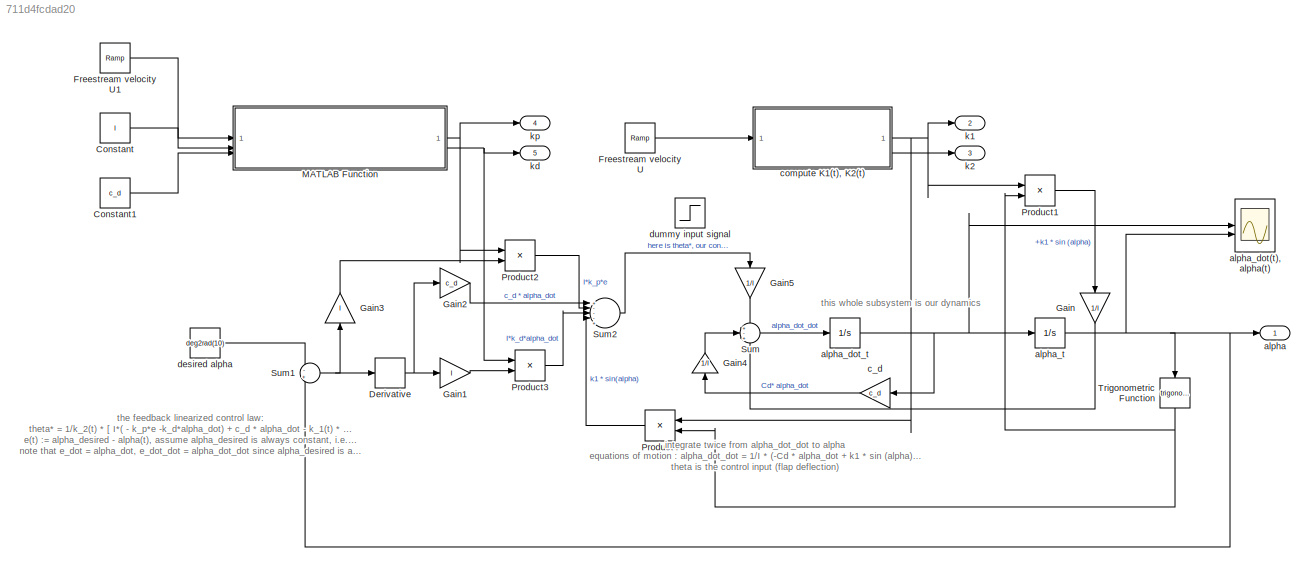
MODEL slx_711d4fcdad20
KIND model
CONFIG AbsTol = auto
CONFIG EnableMultiTasking = off
CONFIG FixedStep = auto
CONFIG MaxStep = auto
CONFIG MinStep = auto
CONFIG RelTol = 1e-3
CONFIG SampleTimeConstraint = Unconstrained
CONFIG SolverName = VariableStepAuto
CONFIG StartTime = 0.0
CONFIG StopTime = 4
WORKSPACE source: mxarray member
WORKSPACE k1 = 0
WORKSPACE k2 = 0
WORKSPACE k_d = 0
WORKSPACE k_p = 0
BLOCK [Constant] Constant
  Value = I
BLOCK [Constant] Constant1
  Value = c_d
BLOCK [Derivative] Derivative
BLOCK [Reference] Freestream velocity U  REF=simulink/Sources/Ramp
  SourceBlock = simulink/Sources/Ramp
  SourceType = Ramp
BLOCK [Reference] Freestream velocity U1  REF=simulink/Sources/Ramp
  SourceBlock = simulink/Sources/Ramp
  SourceType = Ramp
BLOCK [Gain] Gain
  Gain = 1/I
  NameLocation = left
BLOCK [Gain] Gain1
  Gain = I
BLOCK [Gain] Gain2
  Gain = c_d
BLOCK [Gain] Gain3
  Gain = I
  NameLocation = right
BLOCK [Gain] Gain4
  Gain = 1/I
  NameLocation = right
BLOCK [Gain] Gain5
  Gain = 1/I
  NameLocation = left
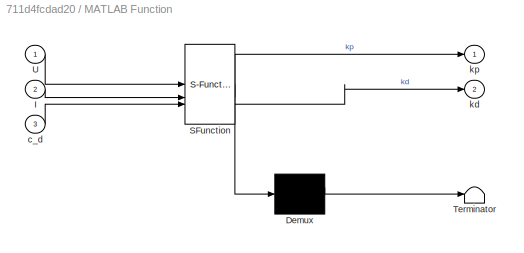
BLOCK [SubSystem] MATLAB Function
  ErrorFcn = Stateflow.Translate.translate
  PermitHierarchicalResolution = ExplicitOnly
  SFBlockType = MATLAB Function
  TreatAsAtomicUnit = on
BLOCK [Demux] MATLAB Function/ Demux 
  Outputs = 1
BLOCK [S-Function] MATLAB Function/ SFunction 
  EnableBusSupport = on
  FunctionName = sf_sfun
  PortCounts = [3 3]
  SFcnIsStateOwnerBlock = off
  SFunctionDeploymentMode = off
  Tag = Stateflow S-Function 1
BLOCK [Terminator] MATLAB Function/ Terminator 
BLOCK [Inport] MATLAB Function/I
  Port = 2
BLOCK [Inport] MATLAB Function/U
BLOCK [Inport] MATLAB Function/c_d
  Port = 3
BLOCK [Outport] MATLAB Function/kd
  Port = 2
BLOCK [Outport] MATLAB Function/kp
BLOCK [Product] Product1
BLOCK [Product] Product2
BLOCK [Product] Product3
BLOCK [Product] Product4
  NameLocation = top
BLOCK [Sum] Sum
  Inputs = +-+
BLOCK [Sum] Sum1
  Inputs = -+
BLOCK [Sum] Sum2
  Inputs = +---+
BLOCK [Trigonometry] Trigonometric Function
  NameLocation = left
BLOCK [Outport] alpha
BLOCK [Scope] alpha_dot(t), alpha(t)
  Floating = off
  NumInputPorts = 2
  ScopeSpecificationString = Simulink.scopes.TimeScopeBlockCfg('CurrentConfiguration', extmgr.ConfigurationSet(extmgr.Configuration('Core','General UI',true),extmgr.Configuration('Core','Source UI',true),extmgr.Configuration('Sources','WiredSimulink',true,'DataLogging',true),extmgr.Configuration('Visuals','Time Domain',true,'SerializedDisplays',{struct('MinYLimReal','-0.60853','MaxYLimReal','1.15515','YLabelReal','','MinYLimM...<+1564ch>
BLOCK [Integrator] alpha_dot_t
BLOCK [Integrator] alpha_t
BLOCK [Gain] c_d
  Gain = c_d
  NameLocation = top
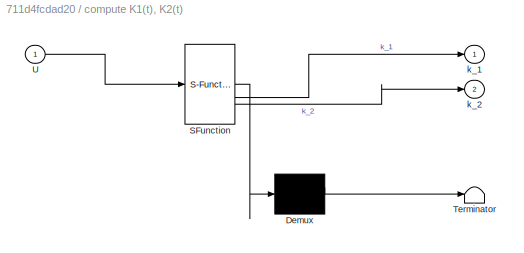
BLOCK [SubSystem] compute K1(t), K2(t)
  ErrorFcn = Stateflow.Translate.translate
  PermitHierarchicalResolution = ExplicitOnly
  SFBlockType = MATLAB Function
  TreatAsAtomicUnit = on
BLOCK [Demux] compute K1(t), K2(t)/ Demux 
  Outputs = 1
BLOCK [S-Function] compute K1(t), K2(t)/ SFunction 
  EnableBusSupport = on
  FunctionName = sf_sfun
  PortCounts = [1 3]
  SFcnIsStateOwnerBlock = off
  SFunctionDeploymentMode = off
  Tag = Stateflow S-Function 2
BLOCK [Terminator] compute K1(t), K2(t)/ Terminator 
BLOCK [Inport] compute K1(t), K2(t)/U
BLOCK [Outport] compute K1(t), K2(t)/k_1
BLOCK [Outport] compute K1(t), K2(t)/k_2
  Port = 2
BLOCK [Constant] desired alpha
  Value = deg2rad(10)
BLOCK [Step] dummy input signal
  Commented = on
  SampleTime = 0
BLOCK [Outport] k1
  Port = 2
BLOCK [Outport] k2
  Port = 3
BLOCK [Outport] kd
  Port = 5
BLOCK [Outport] kp
  Port = 4
ANNOTATION (root): this whole subsystem is our dynamics
ANNOTATION (root): integrate twice from alpha_dot_dot to alpha equations of motion : alpha_dot_dot = 1/I * (-Cd * alpha_dot + k1 * sin (alpha) + k2 * theta), theta is the control input (flap deflection)
ANNOTATION (root): the feedback linearized control law: theta* = 1/k_2(t) * [ I*( - k_p*e -k_d*alpha_dot) + c_d * alpha_dot - k_1(t) * sin(alpha)] e(t) := alpha_desired - alpha(t), assume alpha_desired is always constant, i.e., 10 degrees during take-off note that e_dot = alpha_dot, e_dot_dot = alpha_dot_dot since alpha_desired is a constant!
LINE Constant1:1 -> MATLAB Function:3
LINE Constant:1 -> MATLAB Function:2
NET Derivative:1 -> Gain1:1, Gain2:1
LINE Freestream velocity U1:1 -> MATLAB Function:1
LINE Freestream velocity U:1 -> compute K1(t), K2(t):1
LINE Gain1:1 -> Product3:2
LINE Gain2:1 -> Sum2:1
LINE Gain3:1 -> Product2:2
LINE Gain4:1 -> Sum:2
LINE Gain5:1 -> Sum:1
LINE Gain:1 -> Sum:3
NET MATLAB Function:1 -> Product2:1, kp:1
NET MATLAB Function:2 -> Product3:1, kd:1
LINE Product1:1 -> Gain:1
LINE Product2:1 -> Sum2:2
LINE Product3:1 -> Sum2:3
LINE Product4:1 -> Sum2:4
NET Sum1:1 -> Derivative:1, Gain3:1
LINE Sum2:1 -> Gain5:1
LINE Sum:1 -> alpha_dot_t:1
NET Trigonometric Function:1 -> Product1:2, Product4:2
NET alpha_dot_t:1 -> alpha_dot(t), alpha(t):1, alpha_t:1, c_d:1
NET alpha_t:1 -> Sum1:2, Trigonometric Function:1, alpha:1, alpha_dot(t), alpha(t):2
LINE c_d:1 -> Gain4:1
NET compute K1(t), K2(t):1 -> Product1:1, Product4:1, k1:1
LINE compute K1(t), K2(t):2 -> k2:1
LINE desired alpha:1 -> Sum1:1
note: NET lines group one-source signal fan-out (src -> all destinations, sorted); 1:1 wires keep LINE
CHART MATLAB Function states=1 transitions=1
  STATE_LABEL 'eML_blk_kernel()'
  STATE_LABEL 'SCRIPT:\nfunction [kp, kd] = compute_scheduled_gains(U, I, c_d)\n    % Schedule omega_n based on U(t) (e.g., higher speed → faster response)\n    %omega_n = 1 + 0.1 * U;  % Example: Increase omega_n with U(t)\n    omega_n = 2.0;\n    zeta = 0.9;              % Fixed damping ratio-> minimum overshoot\n    \n    kp = omega_n^2 * I;\n    kd = 2 * zeta * omega_n * I;\nend'
CHART compute K1(t), K2(t) states=1 transitions=1
  STATE_LABEL 'eML_blk_kernel()'
  STATE_LABEL 'SCRIPT:\nfunction [k_1, k_2] = compute_k1k2(U)\n    rho = 1.225;    % Air density (kg/m³)\n    S = 5;         % Wing area (m²)\n    c = 2;          % Chord length (m)\n    d = 0.5;        % Pivot-to-AC distance (m)\n    Cmd = -0.1;     % Flap effectiveness coefficient\n    \n    k_1 = pi * rho * U^2 * S * d;\n    k_2 = 0.5 * rho * U^2 * S * c * Cmd;\nend'
CHART  states=0 transitions=0
CHART  states=0 transitions=0
